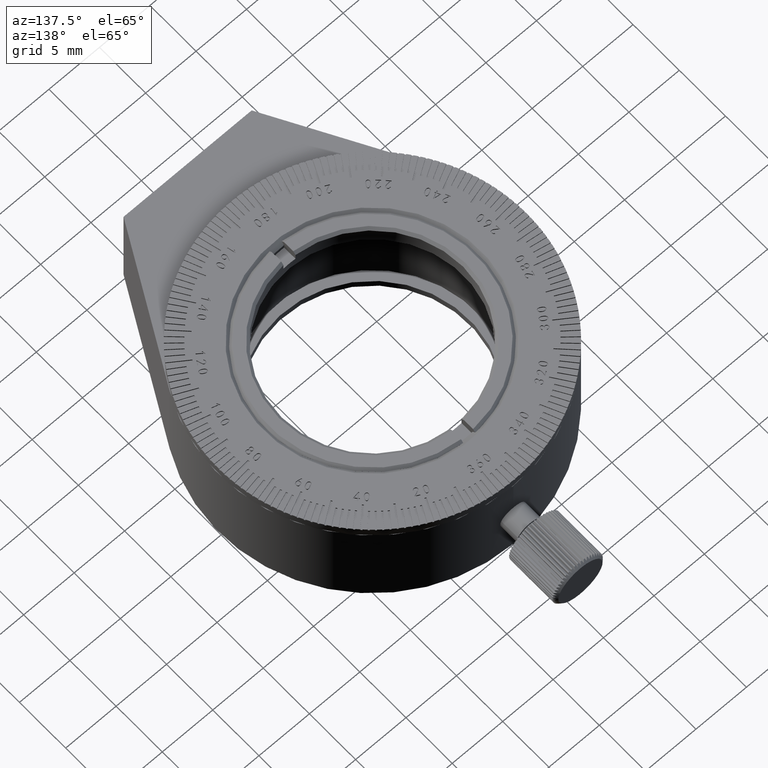
[diagram: clean part render]
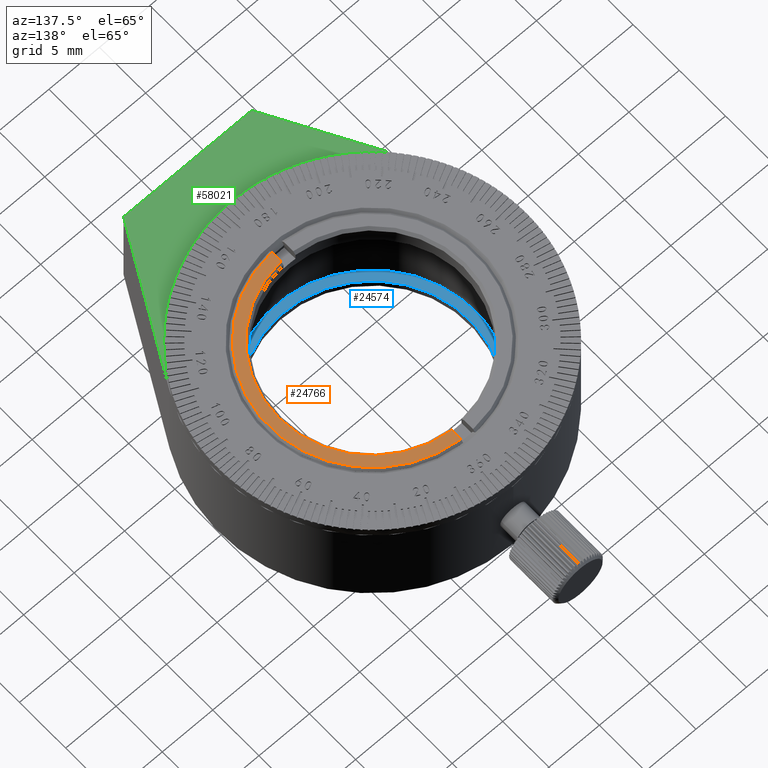
[diagram: same view with three faces highlighted in distinct colors, each labeled with its STEP entity id]
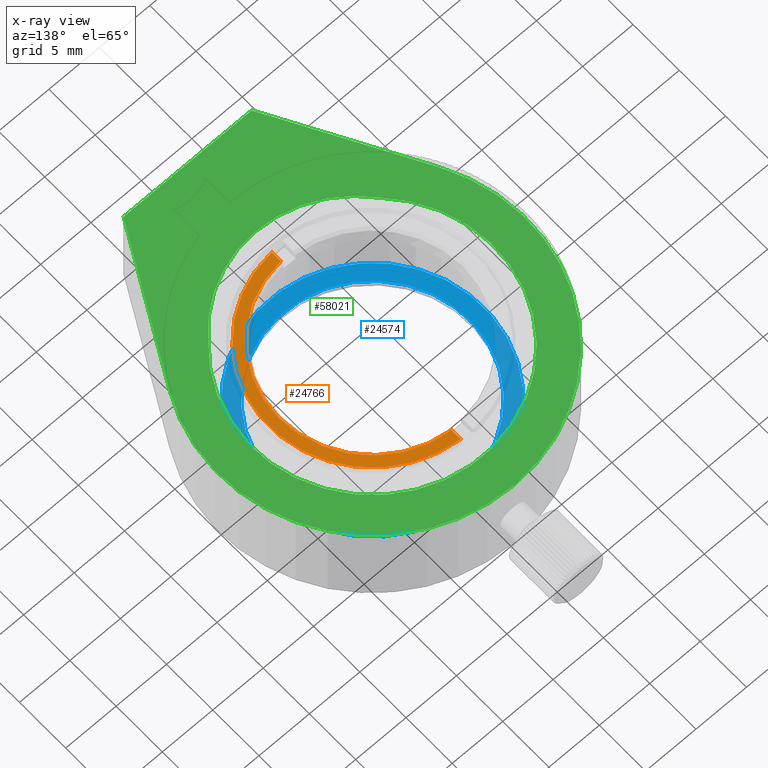
[diagram: x-ray of the same camera — body ghosted, the three highlighted faces saturated]
A machine part, auxiliary view with three faces highlighted in distinct colors.
The next image is the same camera in x-ray (body ghosted, the three faces saturated) — at least one of them is partly hidden behind the body in this view.
Their STEP definitions:

[orange] entity #24766 — the highlighted planar face has unit normal (0, 0, 1).
#4598 = VERTEX_POINT ( 'NONE', #58106 ) ;
#6680 = CARTESIAN_POINT ( 'NONE',  ( 9.230520028687445588, -0.5999999999999998668, 0.000000000000000000 ) ) ;
#7466 = VECTOR ( 'NONE', #33896, 1000.000000000000000 ) ;
#8098 = DIRECTION ( 'NONE',  ( 1.000000000000000000, 0.000000000000000000, 0.000000000000000000 ) ) ;
#11760 = ORIENTED_EDGE ( 'NONE', *, *, #24965, .F. ) ;
#14130 = ORIENTED_EDGE ( 'NONE', *, *, #53053, .T. ) ;
#16042 = EDGE_LOOP ( 'NONE', ( #29604, #14130, #11760, #61409 ) ) ;
#16445 = DIRECTION ( 'NONE',  ( 1.000000000000000000, 0.000000000000000000, 0.000000000000000000 ) ) ;
#20471 = VERTEX_POINT ( 'NONE', #45504 ) ;
#20688 = EDGE_CURVE ( 'NONE', #42158, #4598, #39061, .T. ) ;
#21678 = FACE_OUTER_BOUND ( 'NONE', #16042, .T. ) ;
#23279 = CIRCLE ( 'NONE', #59471, 9.250000000000005329 ) ;
#23407 = AXIS2_PLACEMENT_3D ( 'NONE', #54145, #28048, #8098 ) ;
#24766 = ADVANCED_FACE ( 'NONE', ( #21678 ), #52596, .T. ) ;
#24965 = EDGE_CURVE ( 'NONE', #28546, #20471, #63510, .T. ) ;
#27000 = CARTESIAN_POINT ( 'NONE',  ( -10.23242395525127968, -0.5999999999999998668, 0.000000000000000000 ) ) ;
#28048 = DIRECTION ( 'NONE',  ( 0.000000000000000000, 0.000000000000000000, 1.000000000000000000 ) ) ;
#28546 = VERTEX_POINT ( 'NONE', #6680 ) ;
#29604 = ORIENTED_EDGE ( 'NONE', *, *, #20688, .F. ) ;
#33896 = DIRECTION ( 'NONE',  ( 1.000000000000000000, 0.000000000000000000, 0.000000000000000000 ) ) ;
#36471 = DIRECTION ( 'NONE',  ( 0.000000000000000000, 0.000000000000000000, 1.000000000000000000 ) ) ;
#37684 = CIRCLE ( 'NONE', #23407, 10.25000000000001243 ) ;
#37943 = CARTESIAN_POINT ( 'NONE',  ( 0.000000000000000000, 0.000000000000000000, 0.000000000000000000 ) ) ;
#38209 = EDGE_CURVE ( 'NONE', #28546, #4598, #23279, .T. ) ;
#39061 = LINE ( 'NONE', #60359, #7466 ) ;
#42158 = VERTEX_POINT ( 'NONE', #27000 ) ;
#44759 = AXIS2_PLACEMENT_3D ( 'NONE', #62238, #36471, #67412 ) ;
#45504 = CARTESIAN_POINT ( 'NONE',  ( 10.23242395525127968, -0.5999999999999998668, 0.000000000000000000 ) ) ;
#52596 = PLANE ( 'NONE',  #44759 ) ;
#53053 = EDGE_CURVE ( 'NONE', #42158, #20471, #37684, .T. ) ;
#54145 = CARTESIAN_POINT ( 'NONE',  ( 0.000000000000000000, 0.000000000000000000, 0.000000000000000000 ) ) ;
#58106 = CARTESIAN_POINT ( 'NONE',  ( -9.230520028687445588, -0.5999999999999998668, 0.000000000000000000 ) ) ;
#58883 = DIRECTION ( 'NONE',  ( 1.000000000000000000, 0.000000000000000000, 0.000000000000000000 ) ) ;
#59471 = AXIS2_PLACEMENT_3D ( 'NONE', #37943, #64049, #58883 ) ;
#60359 = CARTESIAN_POINT ( 'NONE',  ( -50000.00000000000728, -0.5999999999999998668, 0.000000000000000000 ) ) ;
#61409 = ORIENTED_EDGE ( 'NONE', *, *, #38209, .T. ) ;
#62238 = CARTESIAN_POINT ( 'NONE',  ( 0.000000000000000000, 0.000000000000000000, 0.000000000000000000 ) ) ;
#63510 = LINE ( 'NONE', #64201, #65598 ) ;
#64049 = DIRECTION ( 'NONE',  ( -0.000000000000000000, -0.000000000000000000, -1.000000000000000000 ) ) ;
#64201 = CARTESIAN_POINT ( 'NONE',  ( -50000.00000000000728, -0.5999999999999998668, 0.000000000000000000 ) ) ;
#65598 = VECTOR ( 'NONE', #16445, 1000.000000000000000 ) ;
#67412 = DIRECTION ( 'NONE',  ( 1.000000000000000000, 0.000000000000000000, -0.000000000000000000 ) ) ;

[blue] entity #24574 — the highlighted planar face has unit normal (-0, -0, -1).
#1554 = DIRECTION ( 'NONE',  ( 0.000000000000000000, 0.000000000000000000, 1.000000000000000000 ) ) ;
#2512 = AXIS2_PLACEMENT_3D ( 'NONE', #23567, #49327, #34551 ) ;
#6579 = ORIENTED_EDGE ( 'NONE', *, *, #60036, .F. ) ;
#7016 = CARTESIAN_POINT ( 'NONE',  ( 0.000000000000000000, -9.250000000000000000, 0.000000000000000000 ) ) ;
#7157 = CARTESIAN_POINT ( 'NONE',  ( 0.000000000000000000, -9.250000000000000000, 0.000000000000000000 ) ) ;
#7606 = AXIS2_PLACEMENT_3D ( 'NONE', #7016, #12504, #48589 ) ;
#8236 = AXIS2_PLACEMENT_3D ( 'NONE', #22847, #32806, #1554 ) ;
#10474 = AXIS2_PLACEMENT_3D ( 'NONE', #7157, #28115, #51094 ) ;
#12504 = DIRECTION ( 'NONE',  ( 0.000000000000000000, 1.000000000000000000, 0.000000000000000000 ) ) ;
#13705 = CIRCLE ( 'NONE', #10474, 9.599999999999999645 ) ;
#14804 = VERTEX_POINT ( 'NONE', #18744 ) ;
#17299 = EDGE_CURVE ( 'NONE', #57933, #30544, #13705, .T. ) ;
#18744 = CARTESIAN_POINT ( 'NONE',  ( 1.353234713057825478E-15, -9.250000000000000000, 11.05000000000000071 ) ) ;
#19310 = DIRECTION ( 'NONE',  ( 0.000000000000000000, -0.000000000000000000, -1.000000000000000000 ) ) ;
#20614 = AXIS2_PLACEMENT_3D ( 'NONE', #24804, #35122, #19310 ) ;
#22847 = CARTESIAN_POINT ( 'NONE',  ( 0.000000000000000000, -9.250000000000000000, 0.000000000000000000 ) ) ;
#23567 = CARTESIAN_POINT ( 'NONE',  ( 0.000000000000000000, -9.250000000000000000, 0.000000000000000000 ) ) ;
#24574 = ADVANCED_FACE ( 'NONE', ( #38248, #40618 ), #66061, .F. ) ;
#24804 = CARTESIAN_POINT ( 'NONE',  ( 0.000000000000000000, -9.250000000000000000, 0.000000000000000000 ) ) ;
#26633 = EDGE_LOOP ( 'NONE', ( #37626, #33074 ) ) ;
#28115 = DIRECTION ( 'NONE',  ( 0.000000000000000000, 1.000000000000000000, 0.000000000000000000 ) ) ;
#30544 = VERTEX_POINT ( 'NONE', #65660 ) ;
#32806 = DIRECTION ( 'NONE',  ( 0.000000000000000000, 1.000000000000000000, 0.000000000000000000 ) ) ;
#33074 = ORIENTED_EDGE ( 'NONE', *, *, #66574, .T. ) ;
#34022 = EDGE_LOOP ( 'NONE', ( #6579, #65408 ) ) ;
#34551 = DIRECTION ( 'NONE',  ( 0.000000000000000000, 0.000000000000000000, 1.000000000000000000 ) ) ;
#35122 = DIRECTION ( 'NONE',  ( 0.000000000000000000, -1.000000000000000000, 0.000000000000000000 ) ) ;
#37250 = CIRCLE ( 'NONE', #7606, 11.05000000000000071 ) ;
#37626 = ORIENTED_EDGE ( 'NONE', *, *, #53738, .T. ) ;
#38248 = FACE_BOUND ( 'NONE', #34022, .T. ) ;
#39770 = VERTEX_POINT ( 'NONE', #55906 ) ;
#40618 = FACE_OUTER_BOUND ( 'NONE', #26633, .T. ) ;
#46676 = CARTESIAN_POINT ( 'NONE',  ( 1.175660927181458842E-15, -9.250000000000000000, -9.599999999999999645 ) ) ;
#48589 = DIRECTION ( 'NONE',  ( 0.000000000000000000, 0.000000000000000000, 1.000000000000000000 ) ) ;
#48709 = CIRCLE ( 'NONE', #2512, 11.05000000000000071 ) ;
#49327 = DIRECTION ( 'NONE',  ( 0.000000000000000000, 1.000000000000000000, 0.000000000000000000 ) ) ;
#51094 = DIRECTION ( 'NONE',  ( 0.000000000000000000, 0.000000000000000000, 1.000000000000000000 ) ) ;
#53738 = EDGE_CURVE ( 'NONE', #39770, #14804, #37250, .T. ) ;
#55906 = CARTESIAN_POINT ( 'NONE',  ( 0.000000000000000000, -9.250000000000000000, -11.05000000000000071 ) ) ;
#57635 = CIRCLE ( 'NONE', #8236, 9.599999999999999645 ) ;
#57933 = VERTEX_POINT ( 'NONE', #46676 ) ;
#60036 = EDGE_CURVE ( 'NONE', #30544, #57933, #57635, .T. ) ;
#65408 = ORIENTED_EDGE ( 'NONE', *, *, #17299, .F. ) ;
#65660 = CARTESIAN_POINT ( 'NONE',  ( 0.000000000000000000, -9.250000000000000000, 9.599999999999999645 ) ) ;
#66061 = PLANE ( 'NONE',  #20614 ) ;
#66574 = EDGE_CURVE ( 'NONE', #14804, #39770, #48709, .T. ) ;

[green] entity #58021 — the highlighted planar face has unit normal (0, 0, 1).
#318 = LINE ( 'NONE', #10610, #31400 ) ;
#905 = CARTESIAN_POINT ( 'NONE',  ( -13.33796466272209358, 10.00000000000000000, 7.393321219585737403 ) ) ;
#1141 = DIRECTION ( 'NONE',  ( 0.000000000000000000, 0.000000000000000000, 1.000000000000000000 ) ) ;
#1216 = DIRECTION ( 'NONE',  ( 0.4848079488252940439, -0.000000000000000000, -0.8746206336211208576 ) ) ;
#2203 = ORIENTED_EDGE ( 'NONE', *, *, #62519, .T. ) ;
#3015 = EDGE_CURVE ( 'NONE', #9477, #58767, #30877, .T. ) ;
#3257 = AXIS2_PLACEMENT_3D ( 'NONE', #8352, #44791, #40991 ) ;
#4743 = CARTESIAN_POINT ( 'NONE',  ( 13.33796466272209713, 10.00000000000000000, 7.393321219585733850 ) ) ;
#4992 = EDGE_CURVE ( 'NONE', #35377, #9477, #15638, .T. ) ;
#5923 = CARTESIAN_POINT ( 'NONE',  ( 8.485281374238597962, 10.00000000000000000, 8.485281374238544672 ) ) ;
#8352 = CARTESIAN_POINT ( 'NONE',  ( 0.000000000000000000, 10.00000000000000000, 0.000000000000000000 ) ) ;
#9477 = VERTEX_POINT ( 'NONE', #4743 ) ;
#10284 = DIRECTION ( 'NONE',  ( 0.000000000000000000, 1.000000000000000000, 0.000000000000000000 ) ) ;
#10610 = CARTESIAN_POINT ( 'NONE',  ( -6.349999999999996980, 10.00000000000000000, 20.00000000000000000 ) ) ;
#10985 = AXIS2_PLACEMENT_3D ( 'NONE', #36033, #26056, #16082 ) ;
#15638 = LINE ( 'NONE', #36617, #34264 ) ;
#16082 = DIRECTION ( 'NONE',  ( 0.000000000000000000, -0.000000000000000000, 1.000000000000000000 ) ) ;
#17729 = EDGE_LOOP ( 'NONE', ( #59527, #62900, #37638 ) ) ;
#18020 = CIRCLE ( 'NONE', #23355, 10.80643872127846983 ) ;
#19574 = DIRECTION ( 'NONE',  ( 0.000000000000000000, 1.000000000000000000, 0.000000000000000000 ) ) ;
#19889 = AXIS2_PLACEMENT_3D ( 'NONE', #61979, #21072, #1141 ) ;
#20771 = ORIENTED_EDGE ( 'NONE', *, *, #49950, .T. ) ;
#21072 = DIRECTION ( 'NONE',  ( 0.000000000000000000, 1.000000000000000000, 0.000000000000000000 ) ) ;
#21333 = ORIENTED_EDGE ( 'NONE', *, *, #4992, .T. ) ;
#21550 = LINE ( 'NONE', #32201, #31089 ) ;
#23355 = AXIS2_PLACEMENT_3D ( 'NONE', #52189, #10284, #26436 ) ;
#26056 = DIRECTION ( 'NONE',  ( 0.000000000000000000, 1.000000000000000000, 0.000000000000000000 ) ) ;
#26433 = CARTESIAN_POINT ( 'NONE',  ( 0.000000000000000000, 10.00000000000000000, 0.000000000000000000 ) ) ;
#26436 = DIRECTION ( 'NONE',  ( 0.000000000000000000, 0.000000000000000000, 1.000000000000000000 ) ) ;
#26510 = CIRCLE ( 'NONE', #61626, 15.25000000000000355 ) ;
#30877 = CIRCLE ( 'NONE', #19889, 15.25000000000000355 ) ;
#30884 = PLANE ( 'NONE',  #10985 ) ;
#31089 = VECTOR ( 'NONE', #62118, 1000.000000000000114 ) ;
#31400 = VECTOR ( 'NONE', #32946, 1000.000000000000000 ) ;
#32039 = CARTESIAN_POINT ( 'NONE',  ( -8.485281374238581975, 10.00000000000000000, 8.485281374238564212 ) ) ;
#32201 = CARTESIAN_POINT ( 'NONE',  ( -13.33796466272209358, 10.00000000000000000, 7.393321219585737403 ) ) ;
#32946 = DIRECTION ( 'NONE',  ( 1.000000000000000000, 0.000000000000000000, 0.000000000000000000 ) ) ;
#33962 = CIRCLE ( 'NONE', #3257, 12.00000000000000178 ) ;
#34264 = VECTOR ( 'NONE', #1216, 1000.000000000000114 ) ;
#35377 = VERTEX_POINT ( 'NONE', #46101 ) ;
#36033 = CARTESIAN_POINT ( 'NONE',  ( 0.000000000000000000, 10.00000000000000000, 0.000000000000000000 ) ) ;
#36531 = VERTEX_POINT ( 'NONE', #65556 ) ;
#36617 = CARTESIAN_POINT ( 'NONE',  ( 13.33796466272209713, 10.00000000000000000, 7.393321219585733850 ) ) ;
#37047 = FACE_BOUND ( 'NONE', #17729, .T. ) ;
#37530 = DIRECTION ( 'NONE',  ( 0.000000000000000000, 1.000000000000000000, 0.000000000000000000 ) ) ;
#37638 = ORIENTED_EDGE ( 'NONE', *, *, #66993, .F. ) ;
#37814 = EDGE_CURVE ( 'NONE', #58767, #46695, #26510, .T. ) ;
#38511 = ORIENTED_EDGE ( 'NONE', *, *, #3015, .T. ) ;
#40578 = AXIS2_PLACEMENT_3D ( 'NONE', #67781, #37530, #41671 ) ;
#40991 = DIRECTION ( 'NONE',  ( 0.000000000000000000, 0.000000000000000000, 1.000000000000000000 ) ) ;
#41671 = DIRECTION ( 'NONE',  ( 0.000000000000000000, 0.000000000000000000, 1.000000000000000000 ) ) ;
#44791 = DIRECTION ( 'NONE',  ( 0.000000000000000000, 1.000000000000000000, 0.000000000000000000 ) ) ;
#46101 = CARTESIAN_POINT ( 'NONE',  ( 6.350000000000002309, 10.00000000000000000, 20.00000000000000000 ) ) ;
#46499 = EDGE_LOOP ( 'NONE', ( #38511, #63672, #20771, #2203, #21333 ) ) ;
#46695 = VERTEX_POINT ( 'NONE', #905 ) ;
#46936 = VERTEX_POINT ( 'NONE', #53375 ) ;
#47041 = DIRECTION ( 'NONE',  ( 0.000000000000000000, 0.000000000000000000, 1.000000000000000000 ) ) ;
#49950 = EDGE_CURVE ( 'NONE', #46695, #46936, #21550, .T. ) ;
#50306 = CARTESIAN_POINT ( 'NONE',  ( 0.000000000000000000, 10.00000000000000000, -15.25000000000000355 ) ) ;
#50581 = VERTEX_POINT ( 'NONE', #32039 ) ;
#51390 = CIRCLE ( 'NONE', #40578, 10.80643872127846983 ) ;
#52189 = CARTESIAN_POINT ( 'NONE',  ( 1.734723475976807094E-15, 10.00000000000000000, 1.793561278721534480 ) ) ;
#53375 = CARTESIAN_POINT ( 'NONE',  ( -6.349999999999996980, 10.00000000000000000, 20.00000000000000000 ) ) ;
#53892 = EDGE_CURVE ( 'NONE', #55566, #50581, #33962, .T. ) ;
#54865 = EDGE_CURVE ( 'NONE', #50581, #36531, #51390, .T. ) ;
#55566 = VERTEX_POINT ( 'NONE', #5923 ) ;
#58021 = ADVANCED_FACE ( 'NONE', ( #37047, #62144 ), #30884, .T. ) ;
#58767 = VERTEX_POINT ( 'NONE', #50306 ) ;
#59527 = ORIENTED_EDGE ( 'NONE', *, *, #54865, .F. ) ;
#61626 = AXIS2_PLACEMENT_3D ( 'NONE', #26433, #19574, #47041 ) ;
#61979 = CARTESIAN_POINT ( 'NONE',  ( 0.000000000000000000, 10.00000000000000000, 0.000000000000000000 ) ) ;
#62118 = DIRECTION ( 'NONE',  ( 0.4848079488252942659, 0.000000000000000000, 0.8746206336211207466 ) ) ;
#62144 = FACE_OUTER_BOUND ( 'NONE', #46499, .T. ) ;
#62519 = EDGE_CURVE ( 'NONE', #46936, #35377, #318, .T. ) ;
#62900 = ORIENTED_EDGE ( 'NONE', *, *, #53892, .F. ) ;
#63672 = ORIENTED_EDGE ( 'NONE', *, *, #37814, .T. ) ;
#65556 = CARTESIAN_POINT ( 'NONE',  ( 1.734723475976807094E-15, 10.00000000000000000, 12.60000000000000320 ) ) ;
#66993 = EDGE_CURVE ( 'NONE', #36531, #55566, #18020, .T. ) ;
#67781 = CARTESIAN_POINT ( 'NONE',  ( 1.734723475976807094E-15, 10.00000000000000000, 1.793561278721534480 ) ) ;